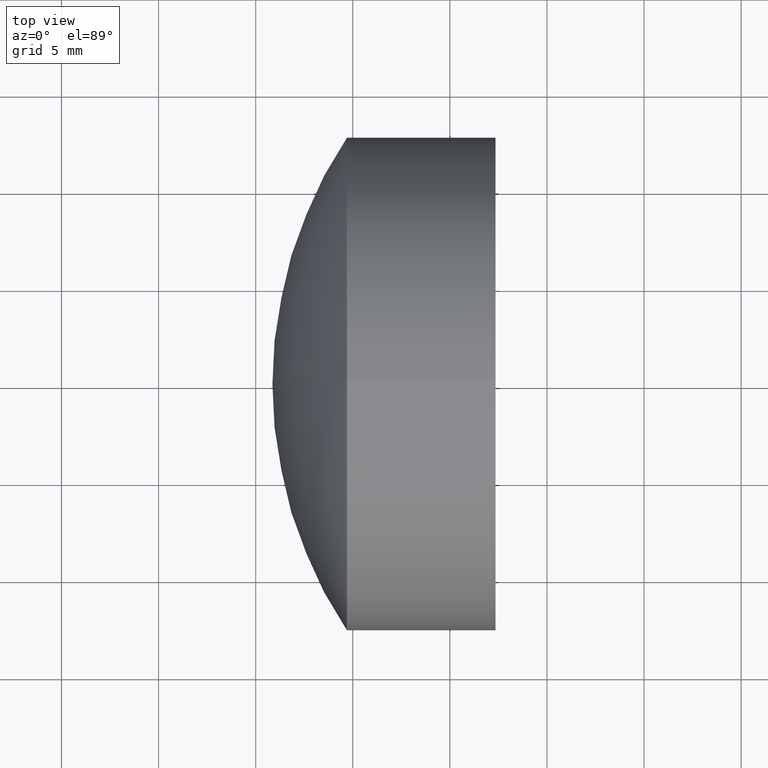
[diagram: clean part render]
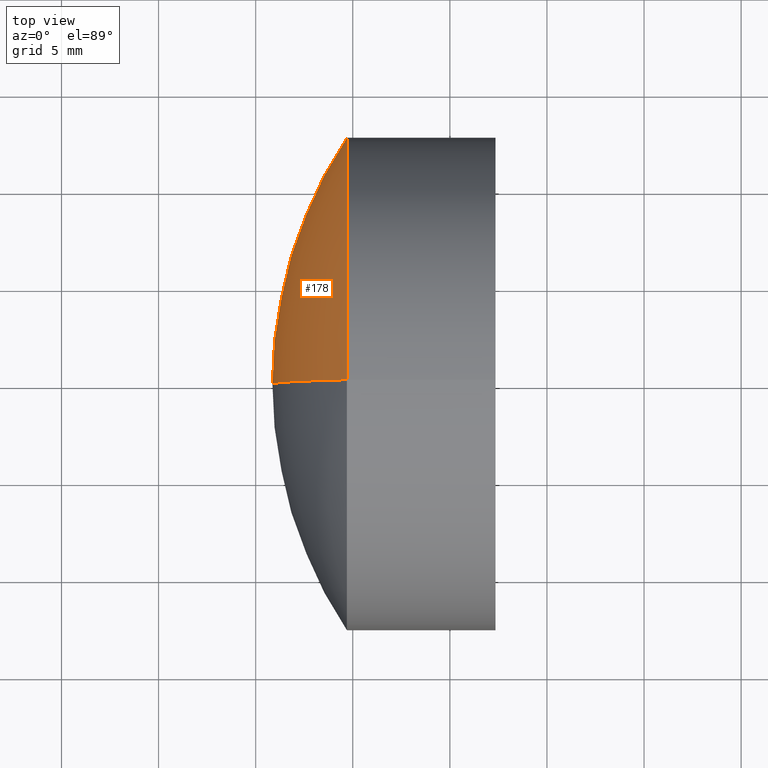
[diagram: same view with one face highlighted and labeled with its STEP entity id]
A machine part, top view. The second image highlights one B-rep face of the part: STEP entity #178.
In plain terms, the highlighted spherical surface has radius 22.94 mm.
Its self-contained STEP definition (entity closure, byte-faithful):
#7 = AXIS2_PLACEMENT_3D ( 'NONE', #257, #92, #170 ) ;
#14 = DIRECTION ( 'NONE',  ( 0.0000000000000000000, -1.224646799147353200E-016, 1.000000000000000000 ) ) ;
#41 = CIRCLE ( 'NONE', #206, 22.94000000000003000 ) ;
#50 = CARTESIAN_POINT ( 'NONE',  ( 34.70027742184829100, 0.0000000000000000000, 12.69999999999997600 ) ) ;
#63 = CARTESIAN_POINT ( 'NONE',  ( 34.70027742184828400, 0.0000000000000000000, 0.0000000000000000000 ) ) ;
#76 = EDGE_CURVE ( 'NONE', #316, #196, #284, .T. ) ;
#79 = ORIENTED_EDGE ( 'NONE', *, *, #119, .F. ) ;
#92 = DIRECTION ( 'NONE',  ( 0.0000000000000000000, 1.000000000000000000, 0.0000000000000000000 ) ) ;
#107 = VERTEX_POINT ( 'NONE', #273 ) ;
#116 = CARTESIAN_POINT ( 'NONE',  ( 34.70027742184829100, 1.555301434917135900E-015, -12.69999999999997600 ) ) ;
#119 = EDGE_CURVE ( 'NONE', #316, #107, #41, .T. ) ;
#131 = EDGE_CURVE ( 'NONE', #196, #107, #267, .T. ) ;
#145 = DIRECTION ( 'NONE',  ( -1.000000000000000000, -0.0000000000000000000, -0.0000000000000000000 ) ) ;
#149 = DIRECTION ( 'NONE',  ( -0.0000000000000000000, 1.000000000000000000, 1.224646799147353200E-016 ) ) ;
#156 = AXIS2_PLACEMENT_3D ( 'NONE', #63, #145, #302 ) ;
#162 = ORIENTED_EDGE ( 'NONE', *, *, #76, .T. ) ;
#170 = DIRECTION ( 'NONE',  ( 0.0000000000000000000, 0.0000000000000000000, 1.000000000000000000 ) ) ;
#178 = ADVANCED_FACE ( 'NONE', ( #249 ), #322, .T. ) ;
#196 = VERTEX_POINT ( 'NONE', #116 ) ;
#206 = AXIS2_PLACEMENT_3D ( 'NONE', #299, #279, #328 ) ;
#211 = EDGE_LOOP ( 'NONE', ( #162, #216, #79 ) ) ;
#216 = ORIENTED_EDGE ( 'NONE', *, *, #131, .T. ) ;
#249 = FACE_OUTER_BOUND ( 'NONE', #211, .T. ) ;
#257 = CARTESIAN_POINT ( 'NONE',  ( 53.80403621429545800, 0.0000000000000000000, -4.336808689942017700E-016 ) ) ;
#267 = CIRCLE ( 'NONE', #294, 22.94000000000003000 ) ;
#273 = CARTESIAN_POINT ( 'NONE',  ( 30.86403621429542500, 0.0000000000000000000, 9.709890096278142500E-016 ) ) ;
#279 = DIRECTION ( 'NONE',  ( 0.0000000000000000000, -1.000000000000000000, 0.0000000000000000000 ) ) ;
#284 = CIRCLE ( 'NONE', #156, 12.69999999999999900 ) ;
#294 = AXIS2_PLACEMENT_3D ( 'NONE', #312, #149, #14 ) ;
#299 = CARTESIAN_POINT ( 'NONE',  ( 53.80403621429545800, 0.0000000000000000000, -4.336808689942017700E-016 ) ) ;
#302 = DIRECTION ( 'NONE',  ( 0.0000000000000000000, 0.0000000000000000000, 1.000000000000000000 ) ) ;
#312 = CARTESIAN_POINT ( 'NONE',  ( 53.80403621429545800, 0.0000000000000000000, -4.336808689942017700E-016 ) ) ;
#316 = VERTEX_POINT ( 'NONE', #50 ) ;
#322 = SPHERICAL_SURFACE ( 'NONE', #7, 22.94000000000003000 ) ;
#328 = DIRECTION ( 'NONE',  ( 0.0000000000000000000, 0.0000000000000000000, -1.000000000000000000 ) ) ;